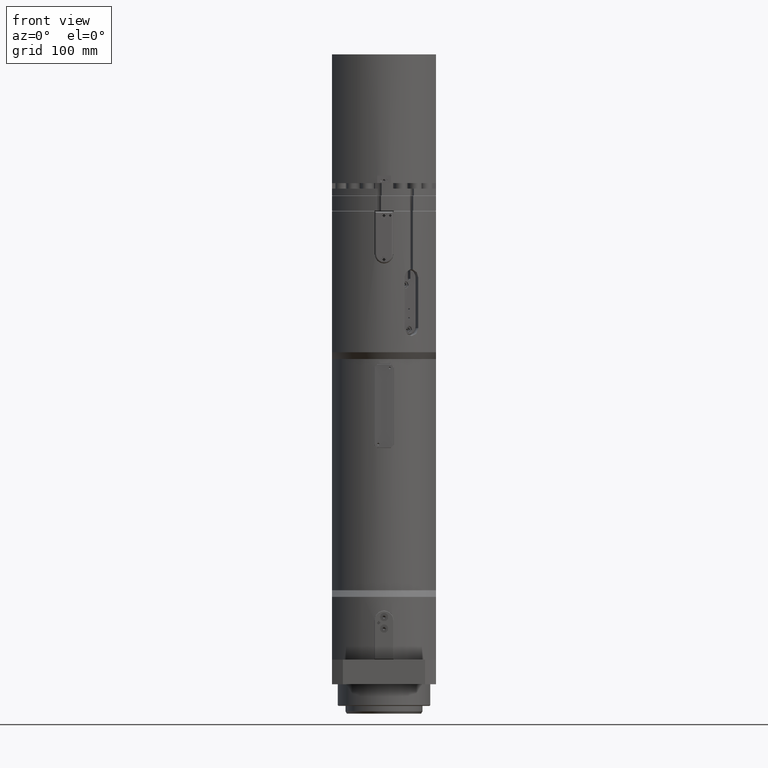
[diagram: clean part render]
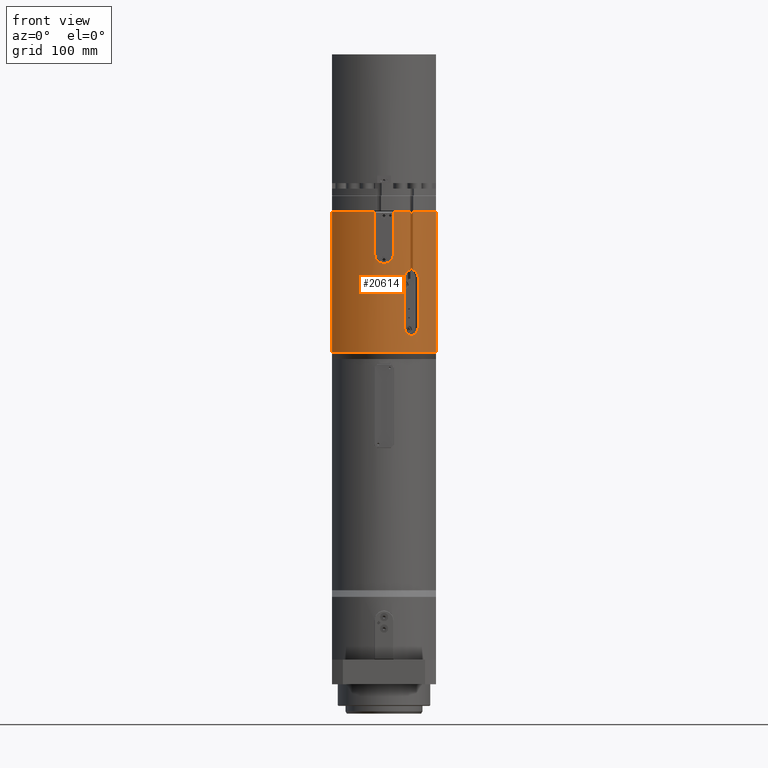
[diagram: same view with one face highlighted and labeled with its STEP entity id]
A machine part, front view. The second image highlights one B-rep face of the part: STEP entity #20614.
In plain terms, the highlighted cylindrical surface (partial cylindrical patch) has radius 76 mm, axis along (0, 0, 1).
Its self-contained STEP definition (entity closure, byte-faithful):
#587=LINE('',#34270,#2261);
#590=LINE('',#34298,#2264);
#597=LINE('',#34364,#2271);
#600=LINE('',#34412,#2274);
#602=LINE('',#34416,#2276);
#607=LINE('',#34427,#2281);
#608=LINE('',#34431,#2282);
#609=LINE('',#34433,#2283);
#2261=VECTOR('',#25618,66.);
#2264=VECTOR('',#25625,66.);
#2271=VECTOR('',#25666,55.5);
#2274=VECTOR('',#25673,55.5);
#2276=VECTOR('',#25677,182.839745962156);
#2281=VECTOR('',#25688,182.839745962156);
#2282=VECTOR('',#25693,75.4980001999601);
#2283=VECTOR('',#25694,75.4980001999601);
#3524=B_SPLINE_CURVE_WITH_KNOTS('',3,(#34275,#34276,#34277,#34278,#34279,
#34280,#34281,#34282,#34283,#34284),.UNSPECIFIED.,.F.,.F.,(4,2,2,2,4),(-3.07775456480917,
-2.69303310377925,-2.30831164274933,-1.92359446257696,-1.53887728240458),
 .UNSPECIFIED.);
#3525=B_SPLINE_CURVE_WITH_KNOTS('',3,(#34286,#34287,#34288,#34289,#34290,
#34291,#34292,#34293,#34294,#34295),.UNSPECIFIED.,.F.,.F.,(4,2,2,2,4),(-1.53887728240458,
-1.15416010223221,-0.769442922059842,-0.384721461029921,0.),
 .UNSPECIFIED.);
#3526=B_SPLINE_CURVE_WITH_KNOTS('',3,(#34330,#34331,#34332,#34333,#34334,
#34335,#34336,#34337,#34338,#34339),.UNSPECIFIED.,.F.,.F.,(4,2,2,2,4),(0.,
0.384721461029921,0.769442922059841,1.15416010223221,1.34292769543692),
 .UNSPECIFIED.);
#3527=B_SPLINE_CURVE_WITH_KNOTS('',3,(#34341,#34342,#34343,#34344,#34345,
#34346,#34347,#34348,#34349,#34350),.UNSPECIFIED.,.F.,.F.,(4,2,2,2,4),(1.73482686937225,
1.92359446257696,2.30831164274933,2.69303310377925,3.07775456480917),
 .UNSPECIFIED.);
#3529=B_SPLINE_CURVE_WITH_KNOTS('',3,(#34388,#34389,#34390,#34391,#34392,
#34393,#34394,#34395,#34396,#34397),.UNSPECIFIED.,.F.,.F.,(4,2,2,2,4),(-1.84165869078057,
-1.38124929937497,-0.92083990796936,-0.46041995398468,0.),.UNSPECIFIED.);
#3530=B_SPLINE_CURVE_WITH_KNOTS('',3,(#34398,#34399,#34400,#34401,#34402,
#34403,#34404,#34405,#34406,#34407),.UNSPECIFIED.,.F.,.F.,(4,2,2,2,4),(-3.68331738156114,
-3.22289742757646,-2.76247747359179,-2.30206808218618,-1.84165869078057),
 .UNSPECIFIED.);
#4230=CYLINDRICAL_SURFACE('',#22209,76.);
#4906=FACE_OUTER_BOUND('',#6269,.T.);
#6269=EDGE_LOOP('',(#14701,#14702,#14703,#14704,#14705,#14706,#14707,#14708,
#14709,#14710,#14711,#14712,#14713,#14714,#14715,#14716,#14717,#14718));
#7484=CIRCLE('',#22187,76.);
#7493=CIRCLE('',#22210,76.);
#7494=CIRCLE('',#22211,76.);
#7495=CIRCLE('',#22212,76.);
#8738=VERTEX_POINT('',#34267);
#8739=VERTEX_POINT('',#34269);
#8740=VERTEX_POINT('',#34273);
#8741=VERTEX_POINT('',#34274);
#8742=VERTEX_POINT('',#34297);
#8743=VERTEX_POINT('',#34301);
#8744=VERTEX_POINT('',#34305);
#8751=VERTEX_POINT('',#34329);
#8752=VERTEX_POINT('',#34340);
#8756=VERTEX_POINT('',#34358);
#8758=VERTEX_POINT('',#34362);
#8760=VERTEX_POINT('',#34385);
#8761=VERTEX_POINT('',#34387);
#8762=VERTEX_POINT('',#34409);
#8764=VERTEX_POINT('',#34415);
#8767=VERTEX_POINT('',#34425);
#8768=VERTEX_POINT('',#34429);
#8769=VERTEX_POINT('',#34432);
#10916=EDGE_CURVE('',#8739,#8738,#587,.T.);
#10918=EDGE_CURVE('',#8740,#8741,#3524,.T.);
#10920=EDGE_CURVE('',#8741,#8739,#3525,.T.);
#10921=EDGE_CURVE('',#8742,#8740,#590,.T.);
#10925=EDGE_CURVE('',#8744,#8743,#7484,.T.);
#10932=EDGE_CURVE('',#8738,#8751,#3526,.T.);
#10933=EDGE_CURVE('',#8752,#8742,#3527,.T.);
#10940=EDGE_CURVE('',#8756,#8758,#597,.T.);
#10943=EDGE_CURVE('',#8761,#8760,#3529,.T.);
#10944=EDGE_CURVE('',#8758,#8761,#3530,.T.);
#10946=EDGE_CURVE('',#8760,#8762,#600,.T.);
#10948=EDGE_CURVE('',#8764,#8743,#602,.T.);
#10954=EDGE_CURVE('',#8744,#8767,#607,.T.);
#10955=EDGE_CURVE('',#8768,#8767,#7493,.T.);
#10956=EDGE_CURVE('',#8768,#8752,#608,.T.);
#10957=EDGE_CURVE('',#8751,#8769,#609,.T.);
#10958=EDGE_CURVE('',#8756,#8769,#7494,.T.);
#10959=EDGE_CURVE('',#8764,#8762,#7495,.T.);
#14701=ORIENTED_EDGE('',*,*,#10948,.T.);
#14702=ORIENTED_EDGE('',*,*,#10925,.F.);
#14703=ORIENTED_EDGE('',*,*,#10954,.T.);
#14704=ORIENTED_EDGE('',*,*,#10955,.F.);
#14705=ORIENTED_EDGE('',*,*,#10956,.T.);
#14706=ORIENTED_EDGE('',*,*,#10933,.T.);
#14707=ORIENTED_EDGE('',*,*,#10921,.T.);
#14708=ORIENTED_EDGE('',*,*,#10918,.T.);
#14709=ORIENTED_EDGE('',*,*,#10920,.T.);
#14710=ORIENTED_EDGE('',*,*,#10916,.T.);
#14711=ORIENTED_EDGE('',*,*,#10932,.T.);
#14712=ORIENTED_EDGE('',*,*,#10957,.T.);
#14713=ORIENTED_EDGE('',*,*,#10958,.F.);
#14714=ORIENTED_EDGE('',*,*,#10940,.T.);
#14715=ORIENTED_EDGE('',*,*,#10944,.T.);
#14716=ORIENTED_EDGE('',*,*,#10943,.T.);
#14717=ORIENTED_EDGE('',*,*,#10946,.T.);
#14718=ORIENTED_EDGE('',*,*,#10959,.F.);
#20614=ADVANCED_FACE('',(#4906),#4230,.T.);
#22187=AXIS2_PLACEMENT_3D('',#34309,#25629,#25630);
#22209=AXIS2_PLACEMENT_3D('',#34428,#25689,#25690);
#22210=AXIS2_PLACEMENT_3D('',#34430,#25691,#25692);
#22211=AXIS2_PLACEMENT_3D('',#34434,#25695,#25696);
#22212=AXIS2_PLACEMENT_3D('',#34435,#25697,#25698);
#25618=DIRECTION('',(0.,0.,1.));
#25625=DIRECTION('',(0.,0.,-1.));
#25629=DIRECTION('center_axis',(0.,0.,-1.));
#25630=DIRECTION('ref_axis',(-1.,0.,0.));
#25666=DIRECTION('',(0.,0.,-1.));
#25673=DIRECTION('',(0.,0.,1.));
#25677=DIRECTION('',(0.,0.,-1.));
#25688=DIRECTION('',(0.,0.,1.));
#25689=DIRECTION('center_axis',(0.,0.,1.));
#25690=DIRECTION('ref_axis',(-1.,0.,0.));
#25691=DIRECTION('center_axis',(0.,0.,1.));
#25692=DIRECTION('ref_axis',(1.,0.,0.));
#25693=DIRECTION('',(0.,0.,-1.));
#25694=DIRECTION('',(0.,0.,1.));
#25695=DIRECTION('center_axis',(0.,0.,1.));
#25696=DIRECTION('ref_axis',(1.,0.,0.));
#25697=DIRECTION('center_axis',(0.,0.,1.));
#25698=DIRECTION('ref_axis',(-1.,0.,0.));
#34267=CARTESIAN_POINT('',(26.35097217783,-71.2855263379827,528.));
#34269=CARTESIAN_POINT('',(26.35097217783,-71.2855263379827,462.));
#34270=CARTESIAN_POINT('',(26.35097217783,-71.2855263379827,422.));
#34273=CARTESIAN_POINT('',(44.3631030721521,-61.7083064571506,462.));
#34274=CARTESIAN_POINT('',(35.6798387717277,-67.1040170572785,451.8));
#34275=CARTESIAN_POINT('Ctrl Pts',(44.3631030721521,-61.7083064571506,462.));
#34276=CARTESIAN_POINT('Ctrl Pts',(44.3631030721521,-61.7083064571506,460.7175951299));
#34277=CARTESIAN_POINT('Ctrl Pts',(44.1534981368612,-61.8606820039781,459.350782550385));
#34278=CARTESIAN_POINT('Ctrl Pts',(43.2950630432986,-62.4644930311686,456.838179302762));
#34279=CARTESIAN_POINT('Ctrl Pts',(42.6454041463625,-62.9141916096528,455.692254744927));
#34280=CARTESIAN_POINT('Ctrl Pts',(41.1287140098121,-63.9159985153936,453.882776986099));
#34281=CARTESIAN_POINT('Ctrl Pts',(40.159969726624,-64.5349465248953,453.098033639952));
#34282=CARTESIAN_POINT('Ctrl Pts',(38.0021577236886,-65.8287057422957,452.056602565985));
#34283=CARTESIAN_POINT('Ctrl Pts',(36.8121224656099,-66.5019711379248,451.8));
#34284=CARTESIAN_POINT('Ctrl Pts',(35.6798387717277,-67.1040170572785,451.8));
#34286=CARTESIAN_POINT('Ctrl Pts',(35.6798387717277,-67.1040170572785,451.8));
#34287=CARTESIAN_POINT('Ctrl Pts',(34.5475550778455,-67.7060629766321,451.8));
#34288=CARTESIAN_POINT('Ctrl Pts',(33.3239334973703,-68.3161616868563,452.056602565985));
#34289=CARTESIAN_POINT('Ctrl Pts',(31.0447253372404,-69.3816079386299,453.098033639952));
#34290=CARTESIAN_POINT('Ctrl Pts',(29.9898792534687,-69.8386220130601,453.882776986099));
#34291=CARTESIAN_POINT('Ctrl Pts',(28.3112213270415,-70.5358118098457,455.692254744927));
#34292=CARTESIAN_POINT('Ctrl Pts',(27.5751196643102,-70.8229351909612,456.838179302762));
#34293=CARTESIAN_POINT('Ctrl Pts',(26.5945068236357,-71.196963295682,459.350782550385));
#34294=CARTESIAN_POINT('Ctrl Pts',(26.35097217783,-71.2855263379827,460.7175951299));
#34295=CARTESIAN_POINT('Ctrl Pts',(26.35097217783,-71.2855263379827,462.));
#34297=CARTESIAN_POINT('',(44.3631030721521,-61.7083064571506,528.));
#34298=CARTESIAN_POINT('',(44.3631030721521,-61.7083064571506,422.));
#34301=CARTESIAN_POINT('',(-67.5,-34.9249194702006,430.660254037844));
#34305=CARTESIAN_POINT('',(67.5,-34.9249194702006,430.660254037844));
#34309=CARTESIAN_POINT('Origin',(0.,0.,430.660254037844));
#34329=CARTESIAN_POINT('',(33.9015869315192,-68.0197206957265,538.00199980004));
#34330=CARTESIAN_POINT('Ctrl Pts',(26.35097217783,-71.2855263379827,528.));
#34331=CARTESIAN_POINT('Ctrl Pts',(26.35097217783,-71.2855263379827,529.2824048701));
#34332=CARTESIAN_POINT('Ctrl Pts',(26.5945068236357,-71.1969632956821,530.649217449615));
#34333=CARTESIAN_POINT('Ctrl Pts',(27.5751196643101,-70.8229351909612,533.161820697238));
#34334=CARTESIAN_POINT('Ctrl Pts',(28.3112213270415,-70.5358118098457,534.307745255073));
#34335=CARTESIAN_POINT('Ctrl Pts',(29.9898792534687,-69.8386220130601,536.117223013901));
#34336=CARTESIAN_POINT('Ctrl Pts',(31.0447253372404,-69.3816079386299,536.901966360048));
#34337=CARTESIAN_POINT('Ctrl Pts',(32.7434942544559,-68.587495752153,537.678179243463));
#34338=CARTESIAN_POINT('Ctrl Pts',(33.3226868970126,-68.308249223097,537.872706789931));
#34339=CARTESIAN_POINT('Ctrl Pts',(33.9015869315192,-68.0197206957265,538.00199980004));
#34340=CARTESIAN_POINT('',(37.4333773029549,-66.141834444583,538.00199980004));
#34341=CARTESIAN_POINT('Ctrl Pts',(37.4333773029549,-66.141834444583,538.00199980004));
#34342=CARTESIAN_POINT('Ctrl Pts',(37.996295084014,-65.823247670178,537.872706789931));
#34343=CARTESIAN_POINT('Ctrl Pts',(38.5516813640672,-65.4992278851181,537.678179243463));
#34344=CARTESIAN_POINT('Ctrl Pts',(40.159969726624,-64.5349465248953,536.901966360048));
#34345=CARTESIAN_POINT('Ctrl Pts',(41.1287140098121,-63.9159985153936,536.117223013901));
#34346=CARTESIAN_POINT('Ctrl Pts',(42.6454041463625,-62.9141916096528,534.307745255073));
#34347=CARTESIAN_POINT('Ctrl Pts',(43.2950630432986,-62.4644930311686,533.161820697238));
#34348=CARTESIAN_POINT('Ctrl Pts',(44.1534981368612,-61.860682003978,530.649217449615));
#34349=CARTESIAN_POINT('Ctrl Pts',(44.3631030721521,-61.7083064571506,529.2824048701));
#34350=CARTESIAN_POINT('Ctrl Pts',(44.3631030721521,-61.7083064571506,528.));
#34358=CARTESIAN_POINT('',(12.1999999999999,-75.0143986178654,613.5));
#34362=CARTESIAN_POINT('',(12.2,-75.0143986178654,558.));
#34364=CARTESIAN_POINT('',(12.1999999999999,-75.0143986178654,422.));
#34385=CARTESIAN_POINT('',(-12.2,-75.0143986178654,558.));
#34387=CARTESIAN_POINT('',(0.,-76.,545.8));
#34388=CARTESIAN_POINT('Ctrl Pts',(1.36002320516582E-14,-76.,545.8));
#34389=CARTESIAN_POINT('Ctrl Pts',(-1.534697971352,-76.,545.8));
#34390=CARTESIAN_POINT('Ctrl Pts',(-3.16989121254882,-75.9487850276928,
546.107252625382));
#34391=CARTESIAN_POINT('Ctrl Pts',(-6.17494838477186,-75.7636863545253,
547.353138396192));
#34392=CARTESIAN_POINT('Ctrl Pts',(-7.54503128291305,-75.6323858388896,
548.291625821961));
#34393=CARTESIAN_POINT('Ctrl Pts',(-9.70839899343214,-75.3852261926212,
550.45499353248));
#34394=CARTESIAN_POINT('Ctrl Pts',(-10.6468669531652,-75.2531793051703,
551.825065756907));
#34395=CARTESIAN_POINT('Ctrl Pts',(-11.8927385806724,-75.0663676020067,
554.830086337483));
#34396=CARTESIAN_POINT('Ctrl Pts',(-12.2,-75.0143986178654,556.465266820051));
#34397=CARTESIAN_POINT('Ctrl Pts',(-12.2,-75.0143986178654,558.));
#34398=CARTESIAN_POINT('Ctrl Pts',(12.2,-75.0143986178654,558.));
#34399=CARTESIAN_POINT('Ctrl Pts',(12.2,-75.0143986178654,556.465266820051));
#34400=CARTESIAN_POINT('Ctrl Pts',(11.8927385806725,-75.0663676020067,554.830086337483));
#34401=CARTESIAN_POINT('Ctrl Pts',(10.6468669531653,-75.2531793051703,551.825065756907));
#34402=CARTESIAN_POINT('Ctrl Pts',(9.70839899343215,-75.3852261926212,550.45499353248));
#34403=CARTESIAN_POINT('Ctrl Pts',(7.54503128291307,-75.6323858388896,548.291625821961));
#34404=CARTESIAN_POINT('Ctrl Pts',(6.17494838477192,-75.7636863545253,547.353138396192));
#34405=CARTESIAN_POINT('Ctrl Pts',(3.16989121254888,-75.9487850276928,546.107252625382));
#34406=CARTESIAN_POINT('Ctrl Pts',(1.53469797135202,-76.,545.8));
#34407=CARTESIAN_POINT('Ctrl Pts',(-1.66533453693773E-15,-76.,545.8));
#34409=CARTESIAN_POINT('',(-12.2,-75.0143986178654,613.5));
#34412=CARTESIAN_POINT('',(-12.2,-75.0143986178654,422.));
#34415=CARTESIAN_POINT('',(-67.5,-34.9249194702006,613.5));
#34416=CARTESIAN_POINT('',(-67.5,-34.9249194702006,422.));
#34425=CARTESIAN_POINT('',(67.5,-34.9249194702006,613.5));
#34427=CARTESIAN_POINT('',(67.5,-34.9249194702006,422.));
#34428=CARTESIAN_POINT('Origin',(0.,0.,422.));
#34429=CARTESIAN_POINT('',(37.4333773029549,-66.141834444583,613.5));
#34430=CARTESIAN_POINT('Origin',(0.,0.,613.5));
#34431=CARTESIAN_POINT('',(37.4333773029549,-66.141834444583,422.));
#34432=CARTESIAN_POINT('',(33.9015869315192,-68.0197206957265,613.5));
#34433=CARTESIAN_POINT('',(33.9015869315192,-68.0197206957265,422.));
#34434=CARTESIAN_POINT('Origin',(0.,0.,613.5));
#34435=CARTESIAN_POINT('Origin',(0.,0.,613.5));